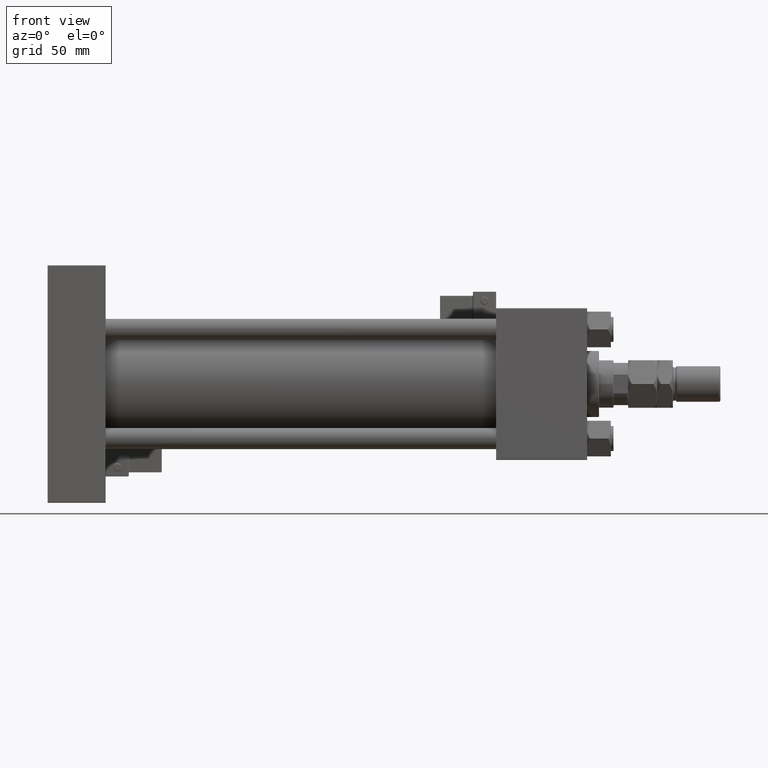
[diagram: clean part render]
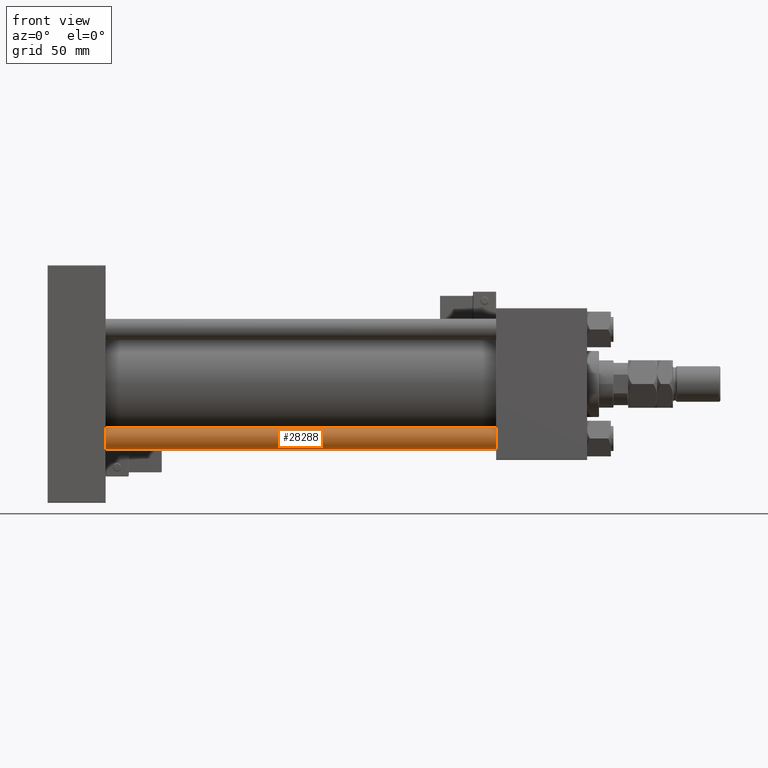
[diagram: same view with one face highlighted and labeled with its STEP entity id]
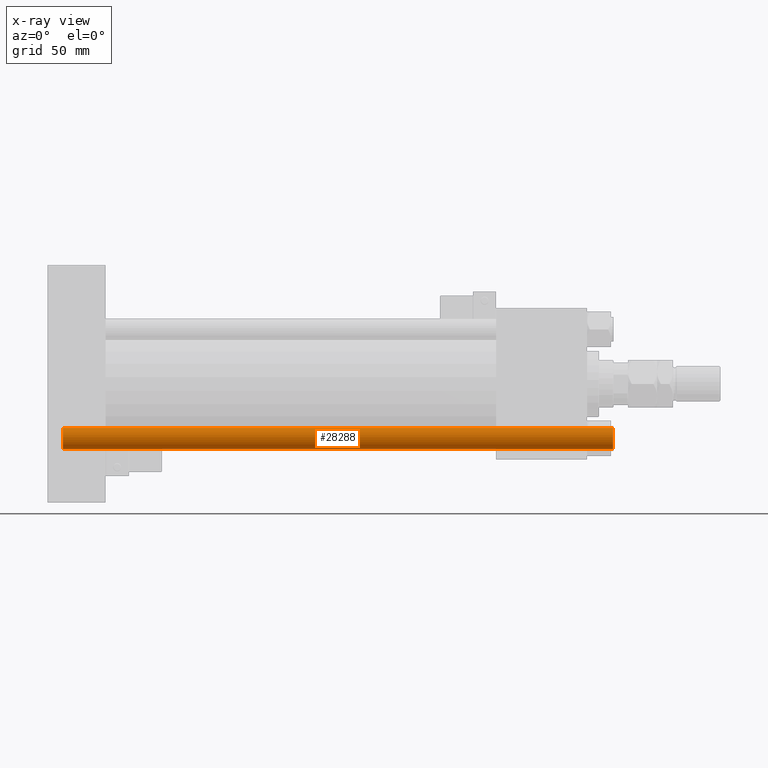
[diagram: x-ray of the same camera — body ghosted, the highlighted face saturated]
A machine part, front view. The second image highlights one B-rep face of the part: STEP entity #28288.
The next image is the same camera in x-ray: the body ghosted, the highlighted face saturated — about 0% of this face is hidden behind the body in this view.
In plain terms, the highlighted cylindrical surface (edge-blend (fillet) strip) has radius 8 mm, axis along (1, -0, -0).
Its self-contained STEP definition (entity closure, byte-faithful):
#1216 = VECTOR ( 'NONE', #50307, 1000.000000000000000 ) ;
#1632 = AXIS2_PLACEMENT_3D ( 'NONE', #35618, #31334, #9114 ) ;
#2679 = ORIENTED_EDGE ( 'NONE', *, *, #29659, .T. ) ;
#3242 = CARTESIAN_POINT ( 'NONE',  ( 0.000000000000000000, 0.000000000000000000, 417.5000000000001137 ) ) ;
#3433 = CIRCLE ( 'NONE', #35322, 8.000000000000000000 ) ;
#5420 = LINE ( 'NONE', #52420, #9700 ) ;
#5501 = EDGE_LOOP ( 'NONE', ( #35986, #39885, #2679, #21783 ) ) ;
#6472 = CARTESIAN_POINT ( 'NONE',  ( -8.000000000000000000, 0.000000000000000000, 418.0000000000000000 ) ) ;
#7510 = VERTEX_POINT ( 'NONE', #45230 ) ;
#8094 = DIRECTION ( 'NONE',  ( 0.000000000000000000, 0.000000000000000000, -1.000000000000000000 ) ) ;
#9114 = DIRECTION ( 'NONE',  ( 1.000000000000000000, 0.000000000000000000, 0.000000000000000000 ) ) ;
#9700 = VECTOR ( 'NONE', #48703, 1000.000000000000000 ) ;
#12555 = CARTESIAN_POINT ( 'NONE',  ( -8.000000000000000000, 0.000000000000000000, 417.5000000000001137 ) ) ;
#13115 = DIRECTION ( 'NONE',  ( -1.000000000000000000, 0.000000000000000000, 0.000000000000000000 ) ) ;
#13492 = CARTESIAN_POINT ( 'NONE',  ( -8.000000000000000000, 0.000000000000000000, 0.5000000000000004441 ) ) ;
#14981 = EDGE_CURVE ( 'NONE', #33314, #7510, #18062, .T. ) ;
#16533 = DIRECTION ( 'NONE',  ( -0.000000000000000000, -0.000000000000000000, -1.000000000000000000 ) ) ;
#18062 = CIRCLE ( 'NONE', #1632, 8.000000000000000000 ) ;
#18331 = VERTEX_POINT ( 'NONE', #31980 ) ;
#18462 = AXIS2_PLACEMENT_3D ( 'NONE', #52120, #16533, #13115 ) ;
#20556 = VERTEX_POINT ( 'NONE', #12555 ) ;
#21783 = ORIENTED_EDGE ( 'NONE', *, *, #14981, .T. ) ;
#28288 = ADVANCED_FACE ( 'NONE', ( #55538 ), #46993, .T. ) ;
#29659 = EDGE_CURVE ( 'NONE', #20556, #33314, #49749, .T. ) ;
#31334 = DIRECTION ( 'NONE',  ( -0.000000000000000000, -0.000000000000000000, 1.000000000000000000 ) ) ;
#31980 = CARTESIAN_POINT ( 'NONE',  ( 8.000000000000000000, 9.797174393178825657E-16, 417.5000000000001137 ) ) ;
#33314 = VERTEX_POINT ( 'NONE', #13492 ) ;
#35322 = AXIS2_PLACEMENT_3D ( 'NONE', #3242, #8094, #54547 ) ;
#35618 = CARTESIAN_POINT ( 'NONE',  ( 0.000000000000000000, 0.000000000000000000, 0.5000000000000004441 ) ) ;
#35878 = EDGE_CURVE ( 'NONE', #18331, #7510, #5420, .T. ) ;
#35986 = ORIENTED_EDGE ( 'NONE', *, *, #35878, .F. ) ;
#39885 = ORIENTED_EDGE ( 'NONE', *, *, #43766, .T. ) ;
#43766 = EDGE_CURVE ( 'NONE', #18331, #20556, #3433, .T. ) ;
#45230 = CARTESIAN_POINT ( 'NONE',  ( 8.000000000000000000, 9.797174393178825657E-16, 0.5000000000000004441 ) ) ;
#46993 = CYLINDRICAL_SURFACE ( 'NONE', #18462, 8.000000000000000000 ) ;
#48703 = DIRECTION ( 'NONE',  ( -0.000000000000000000, -0.000000000000000000, -1.000000000000000000 ) ) ;
#49749 = LINE ( 'NONE', #6472, #1216 ) ;
#50307 = DIRECTION ( 'NONE',  ( -0.000000000000000000, -0.000000000000000000, -1.000000000000000000 ) ) ;
#52120 = CARTESIAN_POINT ( 'NONE',  ( 0.000000000000000000, 0.000000000000000000, 418.0000000000000000 ) ) ;
#52420 = CARTESIAN_POINT ( 'NONE',  ( 8.000000000000000000, 9.797174393178825657E-16, 418.0000000000000000 ) ) ;
#54547 = DIRECTION ( 'NONE',  ( 1.000000000000000000, 0.000000000000000000, 0.000000000000000000 ) ) ;
#55538 = FACE_OUTER_BOUND ( 'NONE', #5501, .T. ) ;